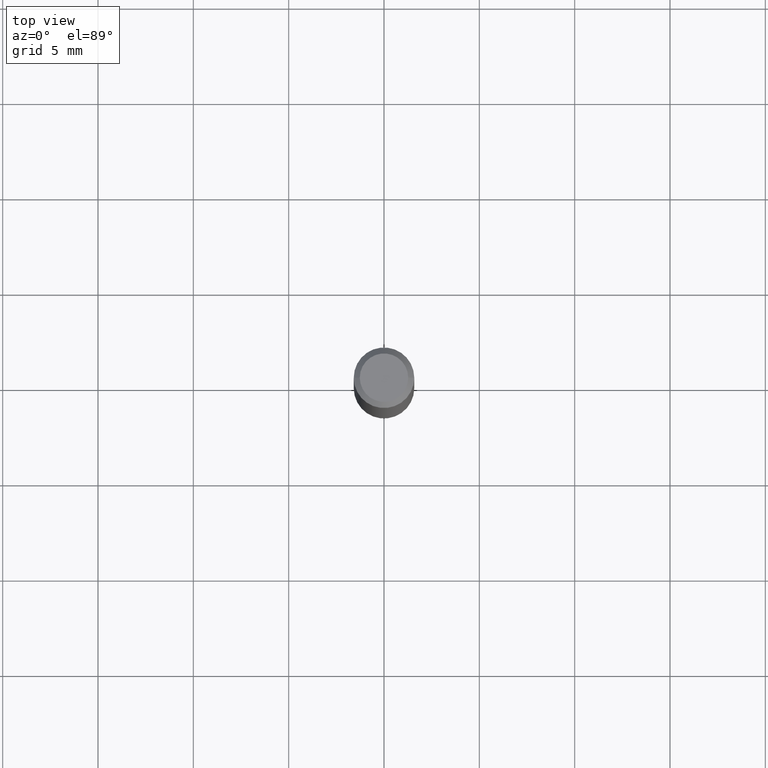
[diagram: clean part render]
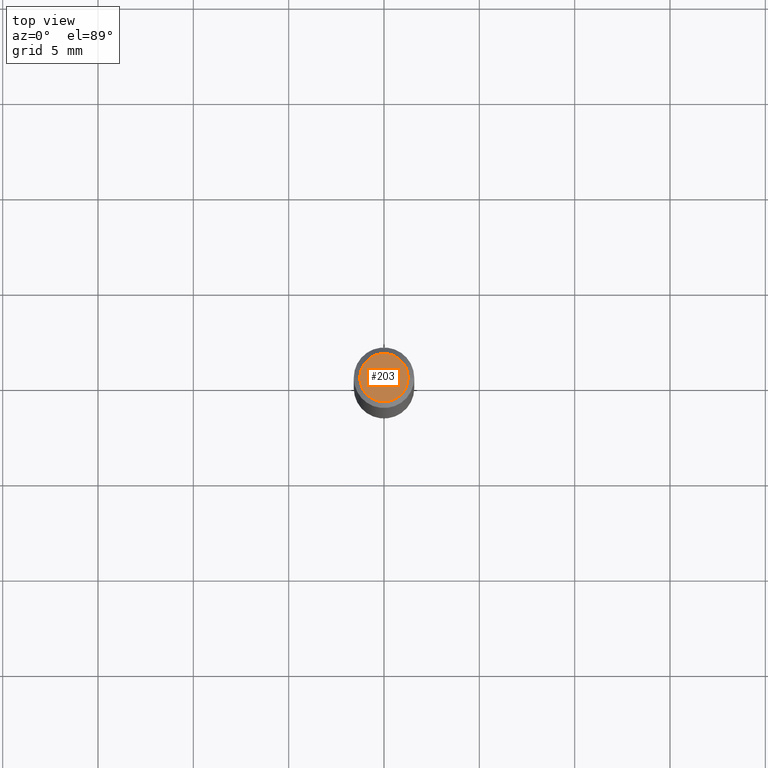
[diagram: same view with one face highlighted and labeled with its STEP entity id]
A machine part, top view. The second image highlights one B-rep face of the part: STEP entity #203.
In plain terms, the highlighted planar face has unit normal (0, -0, -1).
Its self-contained STEP definition (entity closure, byte-faithful):
#13 = CARTESIAN_POINT ( 'NONE',  ( 3.893286209682126177E-47, -5.558580879666067980E-33, -1.592040838891559689E-18 ) ) ;
#53 = CIRCLE ( 'NONE', #360, 0.04999999999999999584 ) ;
#55 = EDGE_LOOP ( 'NONE', ( #413, #401 ) ) ;
#81 = PLANE ( 'NONE',  #260 ) ;
#90 = DIRECTION ( 'NONE',  ( -2.445468806185136597E-29, 3.491481338843145583E-15, 1.000000000000000000 ) ) ;
#102 = EDGE_CURVE ( 'NONE', #471, #200, #53, .T. ) ;
#119 = CARTESIAN_POINT ( 'NONE',  ( 0.04999999999999999584, -4.077247707424184705E-16, -1.592040838888913461E-18 ) ) ;
#174 = CARTESIAN_POINT ( 'NONE',  ( 3.893286209682126177E-47, -5.558580879666067980E-33, -1.592040838891559689E-18 ) ) ;
#193 = DIRECTION ( 'NONE',  ( -1.000000000000000000, 6.982962677686265922E-15, -4.876176775795935793E-29 ) ) ;
#196 = CARTESIAN_POINT ( 'NONE',  ( 1.946643104841063088E-47, -2.779290439833033990E-33, -7.960204194457798443E-19 ) ) ;
#200 = VERTEX_POINT ( 'NONE', #119 ) ;
#203 = ADVANCED_FACE ( 'NONE', ( #391 ), #81, .F. ) ;
#260 = AXIS2_PLACEMENT_3D ( 'NONE', #196, #275, #193 ) ;
#272 = DIRECTION ( 'NONE',  ( 1.000000000000000000, -6.982962677686265922E-15, 4.875957971899673662E-29 ) ) ;
#275 = DIRECTION ( 'NONE',  ( 2.438088387897960049E-29, -3.491481338843145188E-15, -1.000000000000000000 ) ) ;
#300 = CARTESIAN_POINT ( 'NONE',  ( -0.04999999999999999584, 3.709698922520826725E-16, -1.592040838894077649E-18 ) ) ;
#327 = DIRECTION ( 'NONE',  ( -2.445468806185136597E-29, 3.491481338843145583E-15, 1.000000000000000000 ) ) ;
#360 = AXIS2_PLACEMENT_3D ( 'NONE', #13, #90, #272 ) ;
#378 = CIRCLE ( 'NONE', #449, 0.04999999999999999584 ) ;
#391 = FACE_OUTER_BOUND ( 'NONE', #55, .T. ) ;
#401 = ORIENTED_EDGE ( 'NONE', *, *, #415, .T. ) ;
#413 = ORIENTED_EDGE ( 'NONE', *, *, #102, .T. ) ;
#415 = EDGE_CURVE ( 'NONE', #200, #471, #378, .T. ) ;
#449 = AXIS2_PLACEMENT_3D ( 'NONE', #174, #327, #483 ) ;
#471 = VERTEX_POINT ( 'NONE', #300 ) ;
#483 = DIRECTION ( 'NONE',  ( 1.000000000000000000, -6.982962677686265922E-15, 4.875957971899673662E-29 ) ) ;